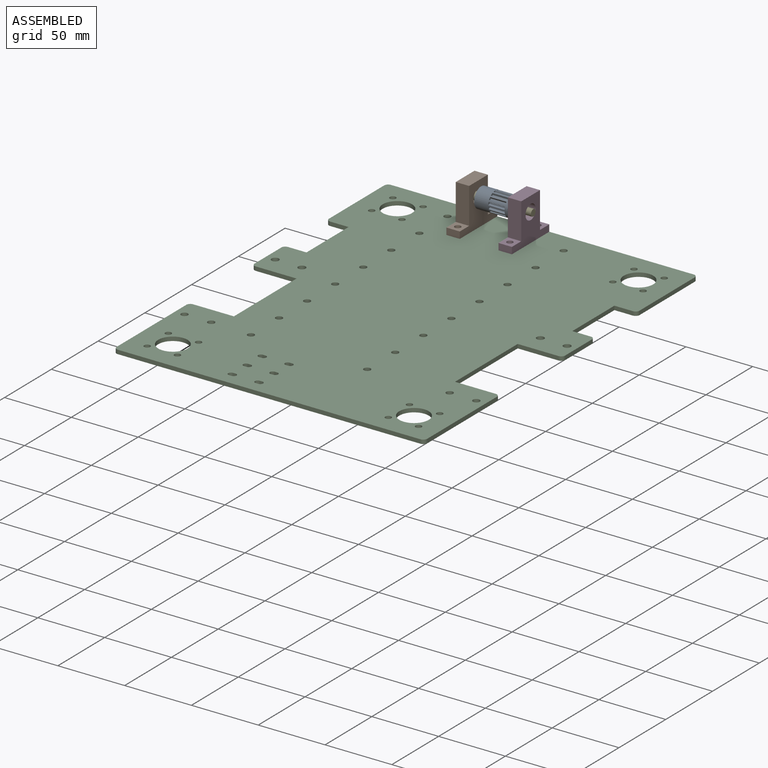
[diagram: assembled view]
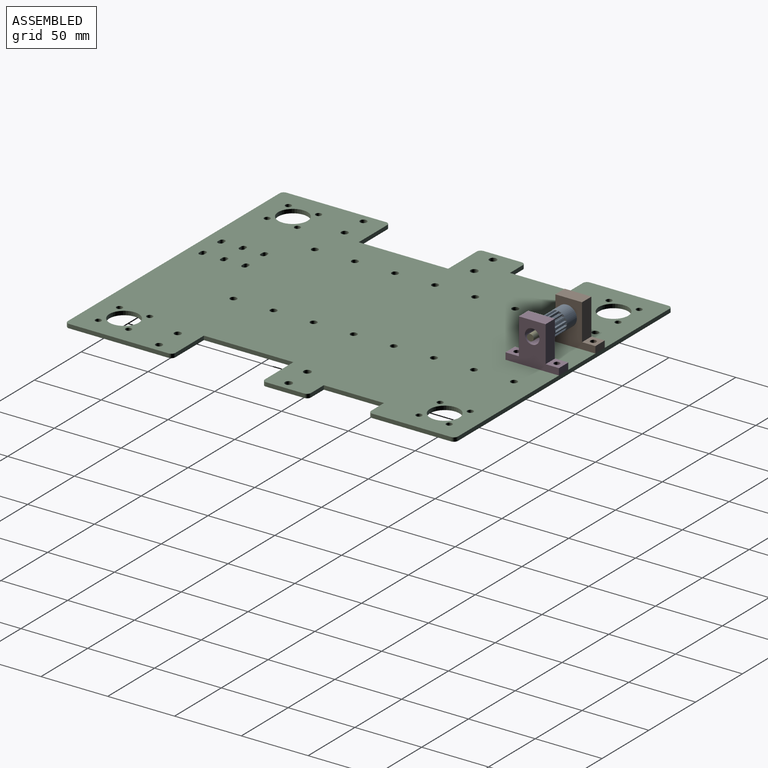
[diagram: assembled view, second angle]
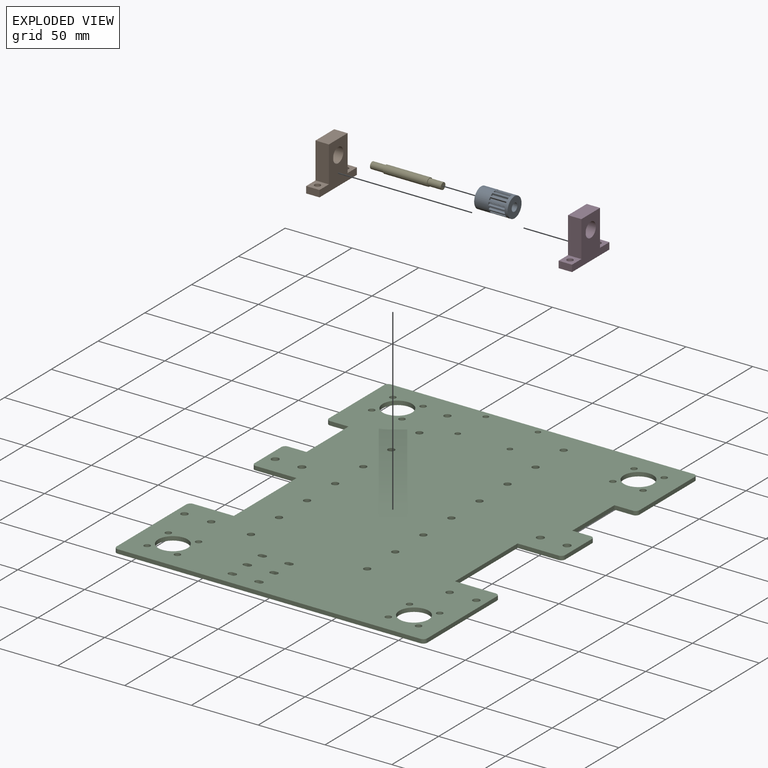
[diagram: exploded view]
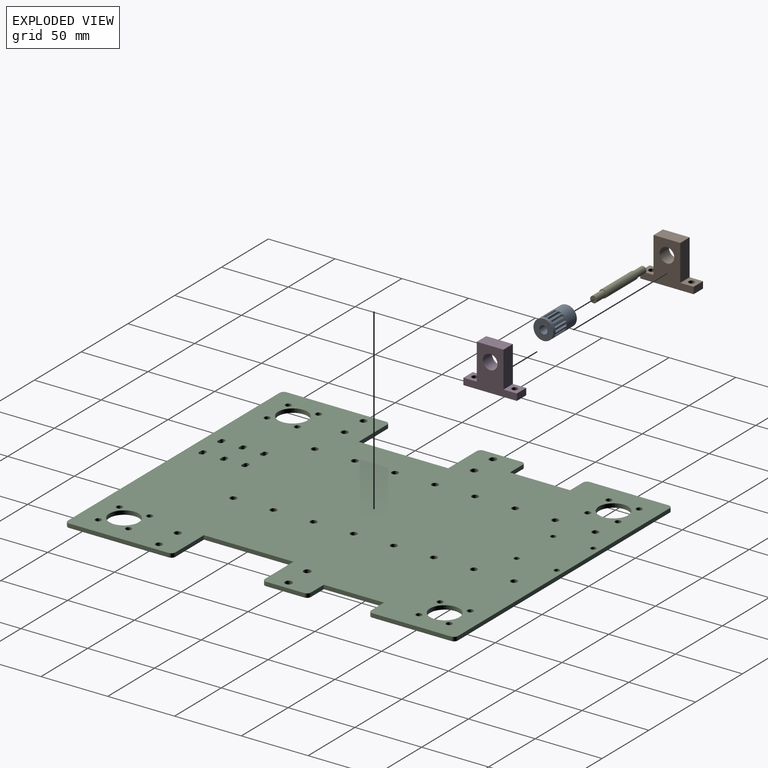
[diagram: exploded view, second angle]
ASSEMBLY  parts=5 mates=4
PART A: 79 faces, bbox 25x15x15 mm
  f0: cylinder r=7.5mm len=25mm, axis (-1,0,0), area 796.3mm2, adj f2,f3,f4,f5,f6,f7,f9,f10
  f1: cylinder r=3mm len=25mm, axis (-1,0,0), area 471.2mm2, adj f2,f3
  f2: plane 15x15mm, normal (1,0,0), area 148.4mm2, adj f0,f1
  f3: plane 15x15mm, normal (-1,0,0), area 148.4mm2, adj f0,f1
  f4: plane 12.25x1.43mm, normal (0,0.94,0.35), area 18.7mm2, adj f0,f6,f7,f8
  f5: plane 12.25x1.43mm, normal (0,-0.94,0.35), area 18.7mm2, adj f0,f6,f7,f8
  f6: plane 2.07x1.5mm, normal (1,0,0), area 2.3mm2, adj f0,f4,f5,f8
  f7: plane 2.07x1.5mm, normal (-1,0,0), area 2.3mm2, adj f0,f4,f5,f8
  f8: plane 12.25x1mm, normal (0,0,1), area 12.3mm2, adj f4,f5,f6,f7
  f9: plane 12.25x1.5mm, normal (0,-0.16,-0.99), area 18.7mm2, adj f0,f11,f12,f13
  f10: plane 12.25x1.18mm, normal (0,0.77,0.64), area 18.7mm2, adj f0,f11,f12,f13
  f11: plane 2.04x2mm, normal (1,0,0), area 2.3mm2, adj f0,f9,f10,f13
  f12: plane 2.04x2mm, normal (-1,0,0), area 2.3mm2, adj f0,f9,f10,f13
  f13: plane 12.25x0.87mm, normal (0,0.87,-0.5), area 12.3mm2, adj f9,f10,f11,f12
  f14: plane 12.25x1.27mm, normal (0,-0.55,-0.83), area 18.7mm2, adj f0,f16,f17,f18
  f15: plane 12.25x1.47mm, normal (0,0.96,0.27), area 18.7mm2, adj f0,f16,f17,f18
  f16: plane 2.08x2.06mm, normal (1,0,0), area 2.3mm2, adj f0,f14,f15,f18
  f17: plane 2.08x2.06mm, normal (-1,0,0), area 2.3mm2, adj f0,f14,f15,f18
  f18: plane 12.25x0.81mm, normal (0,0.59,-0.81), area 12.2mm2, adj f14,f15,f16,f17
  f19: plane 12.25x1.48mm, normal (0,0.25,-0.97), area 18.7mm2, adj f0,f21,f22,f23
  f20: plane 12.25x1.36mm, normal (0,0.45,0.89), area 18.7mm2, adj f0,f21,f22,f23
  f21: plane 2.06x1.59mm, normal (1,0,0), area 2.3mm2, adj f0,f19,f20,f23
  f22: plane 2.06x1.59mm, normal (-1,0,0), area 2.3mm2, adj f0,f19,f20,f23
  f23: plane 12.25x0.99mm, normal (0,0.99,-0.1), area 12.3mm2, adj f19,f20,f21,f22
  f24: plane 12.25x1.19mm, normal (0,0.62,-0.78), area 18.7mm2, adj f0,f26,f27,f28
  f25: plane 12.25x1.52mm, normal (0,0.04,1), area 18.7mm2, adj f0,f26,f27,f28
  f26: plane 1.97x1.83mm, normal (1,0,0), area 2.3mm2, adj f0,f24,f25,f28
  f27: plane 1.97x1.83mm, normal (-1,0,0), area 2.3mm2, adj f0,f24,f25,f28
  f28: plane 12.25x0.95mm, normal (0,0.95,0.31), area 12.2mm2, adj f24,f25,f26,f27
  f29: plane 12.25x1.52mm, normal (0,1,-0.06), area 18.7mm2, adj f0,f31,f32,f33
  f30: plane 12.25x1.09mm, normal (0,-0.71,0.7), area 18.7mm2, adj f0,f31,f32,f33
  f31: plane 1.98x1.93mm, normal (1,0,0), area 2.3mm2, adj f0,f29,f30,f33
  f32: plane 1.98x1.93mm, normal (-1,0,0), area 2.3mm2, adj f0,f29,f30,f33
  f33: plane 12.25x0.91mm, normal (0,0.41,0.91), area 12.2mm2, adj f29,f30,f31,f32
  f34: plane 12.25x1.35mm, normal (0,0.89,-0.46), area 18.7mm2, adj f0,f36,f37,f38
  f35: plane 12.25x1.42mm, normal (0,-0.37,0.93), area 18.7mm2, adj f0,f36,f37,f38
  f36: plane 2.1x2.09mm, normal (1,0,0), area 2.3mm2, adj f0,f34,f35,f38
  f37: plane 2.1x2.09mm, normal (-1,0,0), area 2.3mm2, adj f0,f34,f35,f38
  f38: plane 12.25x0.74mm, normal (0,0.74,0.67), area 12.3mm2, adj f34,f35,f36,f37
  f39: plane 12.25x1.29mm, normal (0,-0.84,-0.54), area 18.7mm2, adj f0,f41,f42,f43
  f40: plane 12.25x1.51mm, normal (0,0.99,-0.15), area 18.7mm2, adj f0,f41,f42,f43
  f41: plane 2.03x1.72mm, normal (1,0,0), area 2.3mm2, adj f0,f39,f40,f43
  f42: plane 2.03x1.72mm, normal (-1,0,0), area 2.3mm2, adj f0,f39,f40,f43
  f43: plane 12.25x0.98mm, normal (0,0.21,-0.98), area 12.2mm2, adj f39,f40,f41,f42
  f44: plane 12.25x1.51mm, normal (0,-0.99,-0.15), area 18.7mm2, adj f0,f46,f47,f48
  f45: plane 12.25x1.29mm, normal (0,0.84,-0.54), area 18.7mm2, adj f0,f46,f47,f48
  f46: plane 2.03x1.72mm, normal (1,0,0), area 2.3mm2, adj f0,f44,f45,f48
  f47: plane 2.03x1.72mm, normal (-1,0,0), area 2.3mm2, adj f0,f44,f45,f48
  f48: plane 12.25x0.98mm, normal (0,-0.21,-0.98), area 12.3mm2, adj f44,f45,f46,f47
  f49: plane 12.25x1.18mm, normal (0,-0.77,0.64), area 18.7mm2, adj f0,f51,f52,f53
  f50: plane 12.25x1.5mm, normal (0,0.16,-0.99), area 18.7mm2, adj f0,f51,f52,f53
  f51: plane 2.04x2mm, normal (1,0,0), area 2.3mm2, adj f0,f49,f50,f53
  f52: plane 2.04x2mm, normal (-1,0,0), area 2.3mm2, adj f0,f49,f50,f53
  f53: plane 12.25x0.87mm, normal (0,-0.87,-0.5), area 12.3mm2, adj f49,f50,f51,f52
  f54: plane 12.25x1.47mm, normal (0,-0.96,0.27), area 18.7mm2, adj f0,f56,f57,f58
  f55: plane 12.25x1.27mm, normal (0,0.55,-0.83), area 18.7mm2, adj f0,f56,f57,f58
  f56: plane 2.08x2.06mm, normal (1,0,0), area 2.3mm2, adj f0,f54,f55,f58
  f57: plane 2.08x2.06mm, normal (-1,0,0), area 2.3mm2, adj f0,f54,f55,f58
  f58: plane 12.25x0.81mm, normal (0,-0.59,-0.81), area 12.2mm2, adj f54,f55,f56,f57
  f59: plane 12.25x1.42mm, normal (0,0.37,0.93), area 18.7mm2, adj f0,f61,f62,f63
  f60: plane 12.25x1.35mm, normal (0,-0.89,-0.46), area 18.7mm2, adj f0,f61,f62,f63
  f61: plane 2.1x2.09mm, normal (1,0,0), area 2.3mm2, adj f0,f59,f60,f63
  f62: plane 2.1x2.09mm, normal (-1,0,0), area 2.3mm2, adj f0,f59,f60,f63
  f63: plane 12.25x0.74mm, normal (0,-0.74,0.67), area 12.3mm2, adj f59,f60,f61,f62
  f64: plane 12.25x1.09mm, normal (0,0.71,0.7), area 18.7mm2, adj f0,f66,f67,f68
  f65: plane 12.25x1.52mm, normal (0,-1,-0.06), area 18.7mm2, adj f0,f66,f67,f68
  f66: plane 1.98x1.93mm, normal (1,0,0), area 2.3mm2, adj f0,f64,f65,f68
  f67: plane 1.98x1.93mm, normal (-1,0,0), area 2.3mm2, adj f0,f64,f65,f68
  f68: plane 12.25x0.91mm, normal (0,-0.41,0.91), area 12.2mm2, adj f64,f65,f66,f67
  f69: plane 12.25x1.52mm, normal (0,-0.04,1), area 18.7mm2, adj f0,f71,f72,f73
  f70: plane 12.25x1.19mm, normal (0,-0.62,-0.78), area 18.7mm2, adj f0,f71,f72,f73
  f71: plane 1.97x1.83mm, normal (1,0,0), area 2.3mm2, adj f0,f69,f70,f73
  f72: plane 1.97x1.83mm, normal (-1,0,0), area 2.3mm2, adj f0,f69,f70,f73
  f73: plane 12.25x0.95mm, normal (0,-0.95,0.31), area 12.2mm2, adj f69,f70,f71,f72
  f74: plane 12.25x1.36mm, normal (0,-0.45,0.89), area 18.7mm2, adj f0,f76,f77,f78
  f75: plane 12.25x1.48mm, normal (0,-0.25,-0.97), area 18.7mm2, adj f0,f76,f77,f78
  f76: plane 2.06x1.59mm, normal (1,0,0), area 2.3mm2, adj f0,f74,f75,f78
  f77: plane 2.06x1.59mm, normal (-1,0,0), area 2.3mm2, adj f0,f74,f75,f78
  f78: plane 12.25x0.99mm, normal (0,-0.99,-0.1), area 12.3mm2, adj f74,f75,f76,f77
PART B: 13 faces, bbox 10x40x32 mm
  f0: plane 10x10mm, normal (0,0,1), area 84.1mm2, adj f1,f7,f9,f10,f11
  f1: plane 27x10mm, normal (0,1,0), area 270mm2, adj f0,f2,f9,f10
  f2: plane 20x10mm, normal (0,0,1), area 200mm2, adj f1,f3,f9,f10
  f3: plane 27x10mm, normal (0,-1,0), area 270mm2, adj f2,f4,f9,f10
  f4: plane 10x10mm, normal (0,0,1), area 84.1mm2, adj f3,f5,f9,f10,f12
  f5: plane 10x5mm, normal (0,-1,0), area 50mm2, adj f4,f6,f9,f10
  f6: plane 40x10mm, normal (0,0,-1), area 368.2mm2, adj f5,f7,f9,f10,f11,f12
  f7: plane 10x5mm, normal (0,1,0), area 50mm2, adj f0,f6,f9,f10
  f8: cylinder r=5.5mm len=11mm, axis (-1,0,0), area 345.6mm2, adj f9,f10
  f9: plane 40x32mm, normal (1,0,0), area 645mm2, adj f0,f1,f2,f3,f4,f5,f6,f7
  f10: plane 40x32mm, normal (-1,0,0), area 645mm2, adj f0,f1,f2,f3,f4,f5,f6,f7
  f11: cylinder r=2.25mm len=5mm, axis (0,0,-1), area 70.7mm2, adj f0,f6
  f12: cylinder r=2.25mm len=5mm, axis (0,0,-1), area 70.7mm2, adj f4,f6
PART C: 106 faces, bbox 292x232.5x3 mm
  f0: plane 28.5x3mm, normal (0,-1,0), area 85.5mm2, adj f2,f3,f95,f97
  f1: plane 28.5x3mm, normal (0,1,0), area 85.5mm2, adj f2,f3,f101,f103
  f2: plane 292x232.5mm, normal (0,0,1), area 59425.7mm2, adj f0,f1,f4,f5,f6,f7,f8,f9
  f3: plane 292x232.5mm, normal (0,0,-1), area 59425.7mm2, adj f0,f1,f4,f5,f6,f7,f8,f9
  f4: plane 59x3mm, normal (0,-1,0), area 177mm2, adj f2,f3,f94,f99
  f5: plane 74.5x3mm, normal (0,1,0), area 223.5mm2, adj f2,f3,f102,f104
  f6: plane 226.5x3mm, normal (1,0,0), area 679.5mm2, adj f2,f3,f99,f105
  f7: cylinder r=2mm len=4mm, axis (0,0,-1), area 37.7mm2, adj f2,f3
  f8: cylinder r=2mm len=4mm, axis (0,0,-1), area 37.7mm2, adj f2,f3
  f9: cylinder r=2mm len=4mm, axis (0,0,-1), area 37.7mm2, adj f2,f3
  f10: cylinder r=2mm len=4mm, axis (0,0,-1), area 37.7mm2, adj f2,f3
  f11: plane 226.5x3mm, normal (-1,0,0), area 679.5mm2, adj f2,f3,f98,f104
  f12: cylinder r=2.5mm len=5mm, axis (0,0,-1), area 47.1mm2, adj f2,f3
  f13: cylinder r=2.5mm len=5mm, axis (0,0,-1), area 47.1mm2, adj f2,f3
  f14: cylinder r=2.5mm len=5mm, axis (0,0,-1), area 47.1mm2, adj f2,f3
  f15: cylinder r=2.5mm len=5mm, axis (0,0,-1), area 47.1mm2, adj f2,f3
  f16: cylinder r=2.5mm len=5mm, axis (0,0,-1), area 47.1mm2, adj f2,f3
  f17: cylinder r=2.5mm len=5mm, axis (0,0,-1), area 47.1mm2, adj f2,f3
  f18: cylinder r=2.5mm len=5mm, axis (0,0,-1), area 47.1mm2, adj f2,f3
  f19: cylinder r=2.5mm len=5mm, axis (0,0,-1), area 47.1mm2, adj f2,f3
  f20: cylinder r=2.5mm len=5mm, axis (0,0,-1), area 47.1mm2, adj f2,f3
  f21: cylinder r=2.5mm len=5mm, axis (0,0,-1), area 47.1mm2, adj f2,f3
  f22: cylinder r=2.5mm len=5mm, axis (0,0,-1), area 47.1mm2, adj f2,f3
  f23: cylinder r=2.5mm len=5mm, axis (0,0,-1), area 47.1mm2, adj f2,f3
  f24: cylinder r=2.5mm len=5mm, axis (0,0,-1), area 47.1mm2, adj f2,f3
  f25: cylinder r=2.5mm len=5mm, axis (0,0,-1), area 47.1mm2, adj f2,f3
  f26: cylinder r=2.5mm len=5mm, axis (0,0,-1), area 47.1mm2, adj f2,f3
  f27: cylinder r=2.5mm len=5mm, axis (0,0,-1), area 47.1mm2, adj f2,f3
  f28: plane 74.5x3mm, normal (0,-1,0), area 223.5mm2, adj f2,f3,f96,f98
  f29: cylinder r=11mm len=22mm, axis (0,0,-1), area 207.3mm2, adj f2,f3
  f30: cylinder r=2.25mm len=4.5mm, axis (0,0,-1), area 42.4mm2, adj f2,f3
  f31: cylinder r=2.25mm len=4.5mm, axis (0,0,-1), area 42.4mm2, adj f2,f3
  f32: cylinder r=2.25mm len=4.5mm, axis (0,0,-1), area 42.4mm2, adj f2,f3
  f33: cylinder r=2.25mm len=4.5mm, axis (0,0,-1), area 42.4mm2, adj f2,f3
  f34: cylinder r=11mm len=22mm, axis (0,0,-1), area 207.3mm2, adj f2,f3
  f35: cylinder r=2.25mm len=4.5mm, axis (0,0,-1), area 42.4mm2, adj f2,f3
  f36: cylinder r=2.25mm len=4.5mm, axis (0,0,-1), area 42.4mm2, adj f2,f3
  f37: cylinder r=2.25mm len=4.5mm, axis (0,0,-1), area 42.4mm2, adj f2,f3
  f38: cylinder r=2.25mm len=4.5mm, axis (0,0,-1), area 42.4mm2, adj f2,f3
  f39: cylinder r=2.25mm len=4.5mm, axis (0,0,-1), area 42.4mm2, adj f2,f3
  f40: cylinder r=2.25mm len=4.5mm, axis (0,0,-1), area 42.4mm2, adj f2,f3
  f41: cylinder r=2.25mm len=4.5mm, axis (0,0,-1), area 42.4mm2, adj f2,f3
  f42: cylinder r=2.25mm len=4.5mm, axis (0,0,-1), area 42.4mm2, adj f2,f3
  f43: cylinder r=11mm len=22mm, axis (0,0,-1), area 207.3mm2, adj f2,f3
  f44: cylinder r=2.25mm len=4.5mm, axis (0,0,-1), area 42.4mm2, adj f2,f3
  f45: cylinder r=2.25mm len=4.5mm, axis (0,0,-1), area 42.4mm2, adj f2,f3
  f46: cylinder r=2.25mm len=4.5mm, axis (0,0,-1), area 42.4mm2, adj f2,f3
  f47: cylinder r=2.25mm len=4.5mm, axis (0,0,-1), area 42.4mm2, adj f2,f3
  f48: plane 59x3mm, normal (0,1,0), area 177mm2, adj f2,f3,f100,f105
  f49: cylinder r=11mm len=22mm, axis (0,0,-1), area 207.3mm2, adj f2,f3
  f50: cylinder r=2.05mm len=4.1mm, axis (0,0,1), area 19.3mm2, adj f2,f3,f52,f53
  f51: cylinder r=2.05mm len=4.1mm, axis (0,0,1), area 19.3mm2, adj f2,f3,f52,f53
  f52: plane 3x2mm, normal (1,0,0), area 6mm2, adj f2,f3,f50,f51
  f53: plane 3x2mm, normal (-1,0,0), area 6mm2, adj f2,f3,f50,f51
  f54: cylinder r=2.05mm len=4.1mm, axis (0,0,1), area 19.3mm2, adj f2,f3,f56,f57
  f55: cylinder r=2.05mm len=4.1mm, axis (0,0,1), area 19.3mm2, adj f2,f3,f56,f57
  f56: plane 3x2mm, normal (-1,0,0), area 6mm2, adj f2,f3,f54,f55
  f57: plane 3x2mm, normal (1,0,0), area 6mm2, adj f2,f3,f54,f55
  f58: cylinder r=2.05mm len=4.1mm, axis (0,0,1), area 19.3mm2, adj f2,f3,f60,f61
  f59: cylinder r=2.05mm len=4.1mm, axis (0,0,1), area 19.3mm2, adj f2,f3,f60,f61
  f60: plane 3x2mm, normal (-1,0,0), area 6mm2, adj f2,f3,f58,f59
  f61: plane 3x2mm, normal (1,0,0), area 6mm2, adj f2,f3,f58,f59
  f62: cylinder r=2.05mm len=4.1mm, axis (0,0,1), area 19.3mm2, adj f2,f3,f64,f65
  f63: cylinder r=2.05mm len=4.1mm, axis (0,0,1), area 19.3mm2, adj f2,f3,f64,f65
  f64: plane 3x2mm, normal (-1,0,0), area 6mm2, adj f2,f3,f62,f63
  f65: plane 3x2mm, normal (1,0,0), area 6mm2, adj f2,f3,f62,f63
  f66: cylinder r=2.05mm len=4.1mm, axis (0,0,1), area 19.3mm2, adj f2,f3,f68,f69
  f67: cylinder r=2.05mm len=4.1mm, axis (0,0,1), area 19.3mm2, adj f2,f3,f68,f69
  f68: plane 3x2mm, normal (-1,0,0), area 6mm2, adj f2,f3,f66,f67
  f69: plane 3x2mm, normal (1,0,0), area 6mm2, adj f2,f3,f66,f67
  f70: cylinder r=2.05mm len=4.1mm, axis (0,0,1), area 19.3mm2, adj f2,f3,f72,f73
  f71: cylinder r=2.05mm len=4.1mm, axis (0,0,1), area 19.3mm2, adj f2,f3,f72,f73
  f72: plane 3x2mm, normal (-1,0,0), area 6mm2, adj f2,f3,f70,f71
  f73: plane 3x2mm, normal (1,0,0), area 6mm2, adj f2,f3,f70,f71
  f74: plane 67x3mm, normal (0,1,0), area 201mm2, adj f2,f3,f75,f76
  f75: plane 30.5x3mm, normal (1,0,0), area 91.5mm2, adj f2,f3,f74,f102
  f76: plane 30.5x3mm, normal (-1,0,0), area 91.5mm2, adj f2,f3,f74,f103
  f77: plane 67x3mm, normal (0,-1,0), area 201mm2, adj f2,f3,f78,f79
  f78: plane 30.5x3mm, normal (1,0,0), area 91.5mm2, adj f2,f3,f77,f96
  f79: plane 30.5x3mm, normal (-1,0,0), area 91.5mm2, adj f2,f3,f77,f97
  f80: cylinder r=2.75mm len=5.5mm, axis (0,0,1), area 51.8mm2, adj f2,f3
  f81: cylinder r=2.75mm len=5.5mm, axis (0,0,1), area 51.8mm2, adj f2,f3
  f82: cylinder r=2.75mm len=5.5mm, axis (0,0,1), area 51.8mm2, adj f2,f3
  f83: cylinder r=2.75mm len=5.5mm, axis (0,0,1), area 51.8mm2, adj f2,f3
  f84: cylinder r=2.55mm len=5.1mm, axis (0,0,1), area 48.1mm2, adj f2,f3
  f85: cylinder r=2.55mm len=5.1mm, axis (0,0,1), area 48.1mm2, adj f2,f3
  f86: cylinder r=2.55mm len=5.1mm, axis (0,0,1), area 48.1mm2, adj f2,f3
  f87: cylinder r=2.55mm len=5.1mm, axis (0,0,1), area 48.1mm2, adj f2,f3
  f88: plane 45x3mm, normal (0,1,0), area 135mm2, adj f2,f3,f89,f90
  f89: plane 13.75x3mm, normal (-1,0,0), area 41.2mm2, adj f2,f3,f88,f100
  f90: plane 13.75x3mm, normal (1,0,0), area 41.2mm2, adj f2,f3,f88,f101
  f91: plane 45x3mm, normal (0,-1,0), area 135mm2, adj f2,f3,f92,f93
  f92: plane 13.75x3mm, normal (1,0,0), area 41.2mm2, adj f2,f3,f91,f95
  f93: plane 13.75x3mm, normal (-1,0,0), area 41.2mm2, adj f2,f3,f91,f94
  f94: cylinder r=3mm len=3mm, axis (0,0,1), area 14.1mm2, adj f2,f3,f4,f93
  f95: cylinder r=3mm len=3mm, axis (0,0,-1), area 14.1mm2, adj f0,f2,f3,f92
  f96: cylinder r=3mm len=3mm, axis (0,0,1), area 14.1mm2, adj f2,f3,f28,f78
  f97: cylinder r=3mm len=3mm, axis (0,0,-1), area 14.1mm2, adj f0,f2,f3,f79
  f98: cylinder r=3mm len=3mm, axis (0,0,-1), area 14.1mm2, adj f2,f3,f11,f28
  f99: cylinder r=3mm len=3mm, axis (0,0,1), area 14.1mm2, adj f2,f3,f4,f6
  f100: cylinder r=3mm len=3mm, axis (0,0,1), area 14.1mm2, adj f2,f3,f48,f89
  f101: cylinder r=3mm len=3mm, axis (0,0,-1), area 14.1mm2, adj f1,f2,f3,f90
  f102: cylinder r=3mm len=3mm, axis (0,0,-1), area 14.1mm2, adj f2,f3,f5,f75
  f103: cylinder r=3mm len=3mm, axis (0,0,1), area 14.1mm2, adj f1,f2,f3,f76
  f104: cylinder r=3mm len=3mm, axis (0,0,1), area 14.1mm2, adj f2,f3,f5,f11
  f105: cylinder r=3mm len=3mm, axis (0,0,-1), area 14.1mm2, adj f2,f3,f6,f48
PART D: same geometry as B
PART E: 7 faces, bbox 53x6x6 mm
  f0: cylinder r=3mm len=33mm, axis (-1,0,0), area 622mm2, adj f1,f2
  f1: plane 6x6mm, normal (1,0,0), area 8.6mm2, adj f0,f5
  f2: plane 6x6mm, normal (-1,0,0), area 8.6mm2, adj f0,f4
  f3: plane 5x5mm, normal (-1,0,0), area 19.6mm2, adj f4
  f4: cylinder r=2.5mm len=10mm, axis (-1,0,0), area 157.1mm2, adj f2,f3
  f5: cylinder r=2.5mm len=10mm, axis (-1,0,0), area 157.1mm2, adj f1,f6
  f6: plane 5x5mm, normal (1,0,0), area 19.6mm2, adj f5
PLACE A rot(axis=(0,0.99,0.16),180deg) t=(-12.16,175.41,325.28)mm
PLACE B rot(axis=(-1,0,0),0deg) t=(-36.66,136.34,-267.28)mm
PLACE C rot(axis=(0,0,1),90deg) t=(-8.16,136.34,-0.28)mm fixed
PLACE D rot(axis=(0,0,-1),0deg) t=(2.34,136.34,-267.28)mm
PLACE E rot(axis=(0,0.58,0.81),180deg) t=(-12.16,-190.04,96.99)mm
MATE revolute A.f0 <-> D.f8  axis (1,0,0) through (0.34,116.34,23.72)mm
MATE fastened D.f11 <-> C.f7  axis (0,0,-1) through (7.34,131.34,2.72)mm
MATE fastened A.f0 <-> E.f0  axis (1,0,0) through (-12.16,116.34,23.72)mm
MATE fastened B.f11 <-> C.f10  axis (0,0,-1) through (-31.66,131.34,2.72)mm
